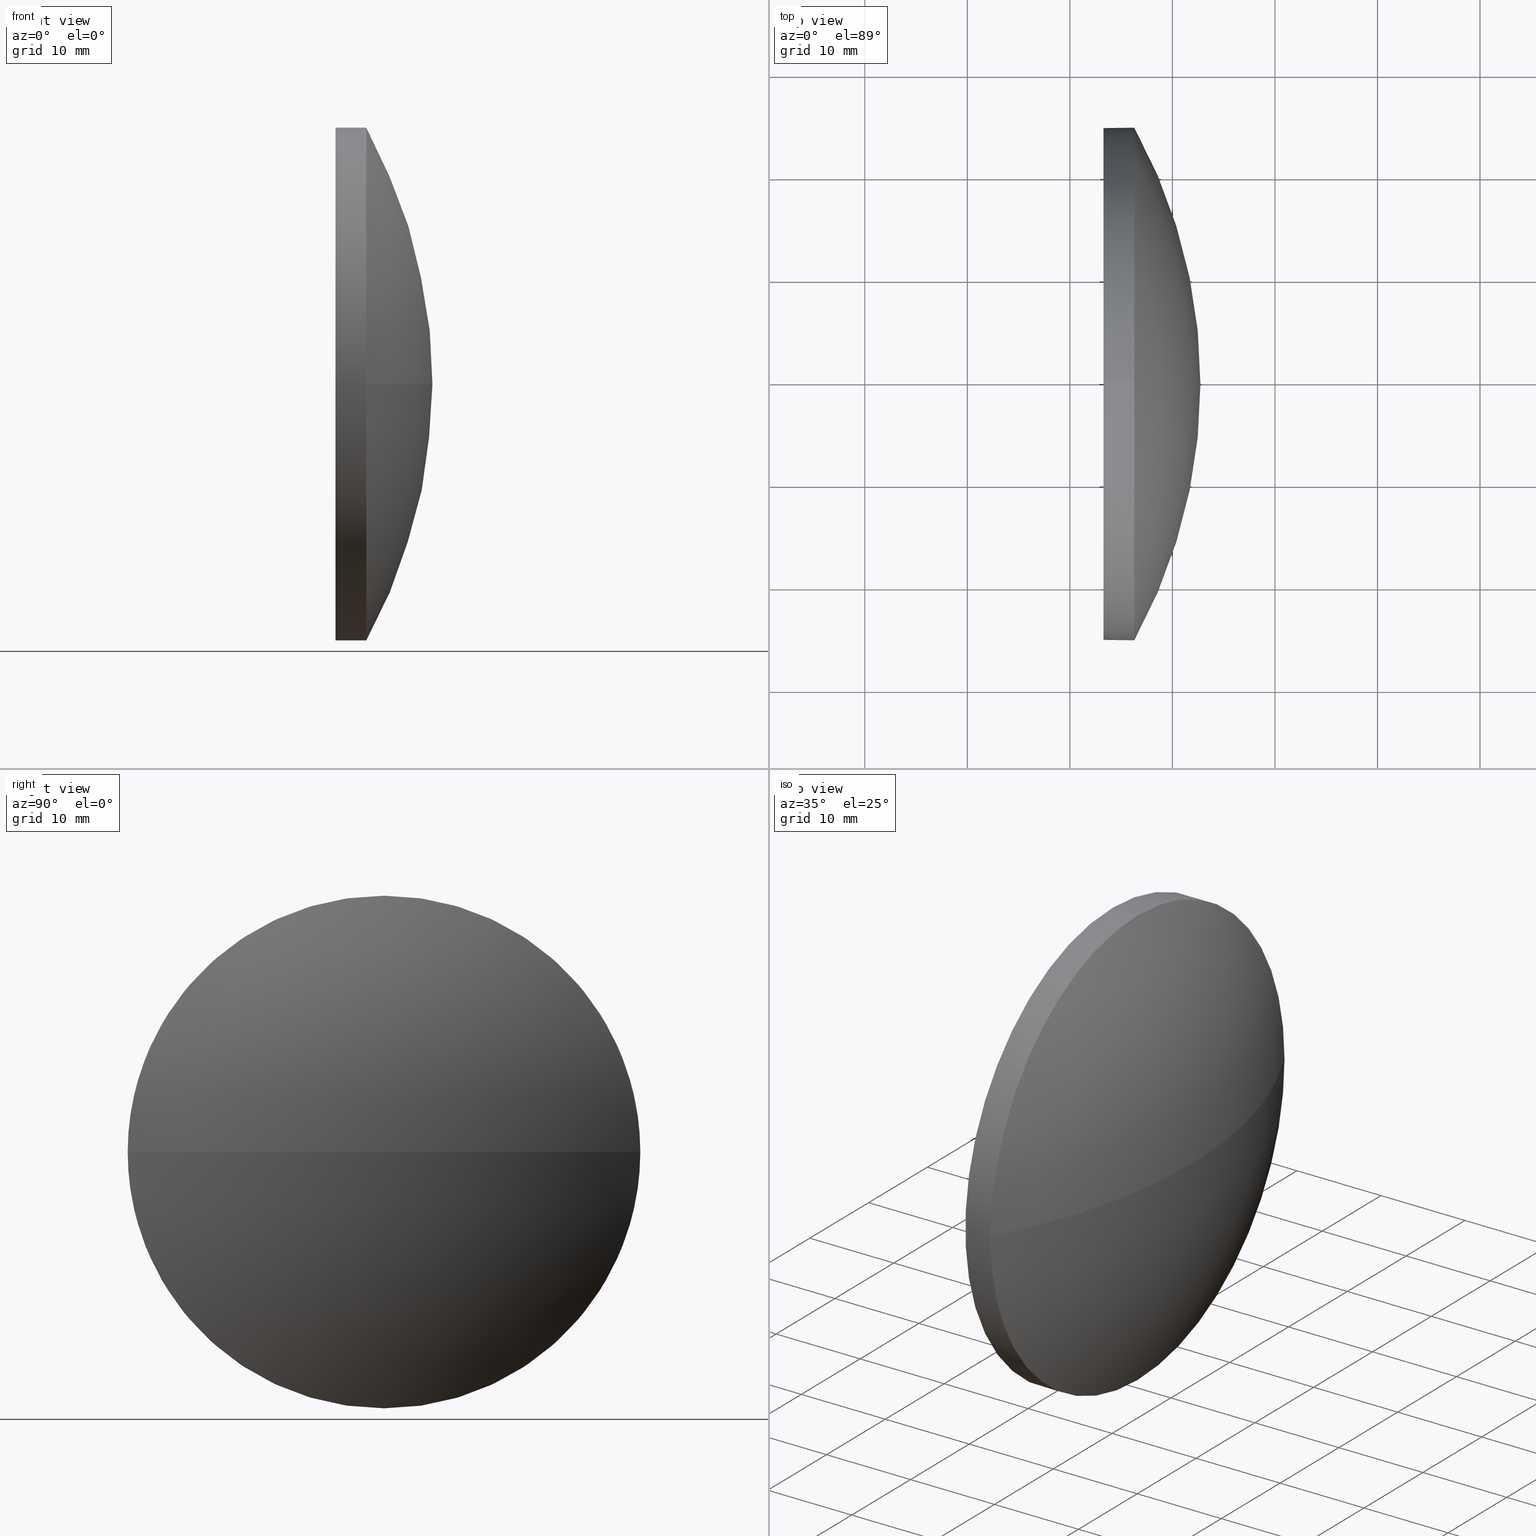
[diagram: canonical four-view strip — front | top / right | iso, engineering-drawing reading convention]
A machine part, canonical four-view strip (front | top / right | iso — engineering-drawing reading convention). The complete STEP part file that produces these views, byte-faithful:
ISO-10303-21;
HEADER;
FILE_DESCRIPTION (( 'STEP AP214' ),
    '1' );
FILE_NAME ('100240.STEP',
    '2019-05-28T08:01:42',
    ( '' ),
    ( '' ),
    'SwSTEP 2.0',
    'SolidWorks 2016',
    '' );
FILE_SCHEMA (( 'AUTOMOTIVE_DESIGN' ));
ENDSEC;

DATA;
#1 = ORIENTED_EDGE ( 'NONE', *, *, #71, .T. ) ;
#2 = VERTEX_POINT ( 'NONE', #103 ) ;
#3 = CARTESIAN_POINT ( 'NONE',  ( 339.3126948403255500, 9.632589185674763900, -24.99999999999999600 ) ) ;
#4 = DIRECTION ( 'NONE',  ( 1.000000000000000000, 0.0000000000000000000, 0.0000000000000000000 ) ) ;
#5 = CARTESIAN_POINT ( 'NONE',  ( 339.3126948403255500, 9.632589185674760300, 0.0000000000000000000 ) ) ;
#6 = DIRECTION ( 'NONE',  ( -1.000000000000000000, -0.0000000000000000000, -0.0000000000000000000 ) ) ;
#7 = CARTESIAN_POINT ( 'NONE',  ( 301.0598577263408500, 9.632589185674756700, 0.0000000000000000000 ) ) ;
#8 = CARTESIAN_POINT ( 'NONE',  ( 346.2844701294416200, -15.36741081432525000, -3.061616997868383800E-015 ) ) ;
#9 = DIRECTION ( 'NONE',  ( -0.0000000000000000000, 0.0000000000000000000, 1.000000000000000000 ) ) ;
#10 = CARTESIAN_POINT ( 'NONE',  ( 346.2844701294416200, 9.632589185674760300, 0.0000000000000000000 ) ) ;
#11 = CIRCLE ( 'NONE', #175, 24.99999999999999600 ) ;
#12 = EDGE_CURVE ( 'NONE', #139, #2, #169, .T. ) ;
#13 = ORIENTED_EDGE ( 'NONE', *, *, #173, .F. ) ;
#14 = EDGE_CURVE ( 'NONE', #133, #69, #11, .T. ) ;
#15 = CIRCLE ( 'NONE', #74, 24.99999999999999600 ) ;
#16 = STYLED_ITEM ( 'NONE', ( #46 ), #72 ) ;
#17 = DIRECTION ( 'NONE',  ( 0.0000000000000000000, 0.0000000000000000000, 1.000000000000000000 ) ) ;
#18 = EDGE_CURVE ( 'NONE', #70, #2, #54, .T. ) ;
#19 = ORIENTED_EDGE ( 'NONE', *, *, #71, .F. ) ;
#20 = FILL_AREA_STYLE ('',( #150 ) ) ;
#21 = AXIS2_PLACEMENT_3D ( 'NONE', #10, #79, #155 ) ;
#22 = CYLINDRICAL_SURFACE ( 'NONE', #121, 24.99999999999999600 ) ;
#23 = FACE_OUTER_BOUND ( 'NONE', #137, .T. ) ;
#24 = SURFACE_SIDE_STYLE ('',( #171 ) ) ;
#25 = AXIS2_PLACEMENT_3D ( 'NONE', #7, #80, #92 ) ;
#26 = DIRECTION ( 'NONE',  ( -1.000000000000000000, -0.0000000000000000000, -0.0000000000000000000 ) ) ;
#27 = MECHANICAL_DESIGN_GEOMETRIC_PRESENTATION_REPRESENTATION (  '', ( #87 ), #100 ) ;
#28 = DIRECTION ( 'NONE',  ( 0.0000000000000000000, 0.0000000000000000000, 1.000000000000000000 ) ) ;
#29 = DIRECTION ( 'NONE',  ( 0.0000000000000000000, 0.0000000000000000000, 1.000000000000000000 ) ) ;
#30 = CARTESIAN_POINT ( 'NONE',  ( 301.0598577263408500, 9.632589185674756700, 0.0000000000000000000 ) ) ;
#31 = CARTESIAN_POINT ( 'NONE',  ( 0.0000000000000000000, 0.0000000000000000000, 0.0000000000000000000 ) ) ;
#32 = EDGE_CURVE ( 'NONE', #159, #133, #89, .T. ) ;
#33 =( LENGTH_UNIT ( ) NAMED_UNIT ( * ) SI_UNIT ( .MILLI., .METRE. ) );
#34 = VECTOR ( 'NONE', #6, 1000.000000000000000 ) ;
#35 = ADVANCED_FACE ( 'NONE', ( #110 ), #57, .F. ) ;
#36 = PRESENTATION_LAYER_ASSIGNMENT (  '', '', ( #16 ) ) ;
#37 = ADVANCED_FACE ( 'NONE', ( #86 ), #67, .T. ) ;
#38 = UNCERTAINTY_MEASURE_WITH_UNIT (LENGTH_MEASURE( 1.000000000000000100E-005 ), #33, 'distance_accuracy_value', 'NONE');
#39 = ORIENTED_EDGE ( 'NONE', *, *, #18, .T. ) ;
#40 = CIRCLE ( 'NONE', #55, 51.67461240310078100 ) ;
#41 = AXIS2_PLACEMENT_3D ( 'NONE', #124, #152, #142 ) ;
#42 = VECTOR ( 'NONE', #26, 1000.000000000000000 ) ;
#43 = CARTESIAN_POINT ( 'NONE',  ( 343.2844701294416200, 9.632589185674760300, 24.99999999999999600 ) ) ;
#44 =( LENGTH_UNIT ( ) NAMED_UNIT ( * ) SI_UNIT ( .MILLI., .METRE. ) );
#45 = CARTESIAN_POINT ( 'NONE',  ( 346.2844701294416200, 9.632589185674763900, -24.99999999999999600 ) ) ;
#46 = PRESENTATION_STYLE_ASSIGNMENT (( #97 ) ) ;
#47 = CARTESIAN_POINT ( 'NONE',  ( 339.3126948403255500, 9.632589185674760300, 0.0000000000000000000 ) ) ;
#48 = DIRECTION ( 'NONE',  ( 1.000000000000000000, 0.0000000000000000000, 0.0000000000000000000 ) ) ;
#49 = ORIENTED_EDGE ( 'NONE', *, *, #14, .F. ) ;
#50 = AXIS2_PLACEMENT_3D ( 'NONE', #30, #93, #180 ) ;
#51 = ORIENTED_EDGE ( 'NONE', *, *, #182, .T. ) ;
#52 = PRODUCT ( '100240', '100240', '', ( #146 ) ) ;
#53 = ORIENTED_EDGE ( 'NONE', *, *, #167, .F. ) ;
#54 = LINE ( 'NONE', #3, #42 ) ;
#55 = AXIS2_PLACEMENT_3D ( 'NONE', #181, #9, #48 ) ;
#56 = CARTESIAN_POINT ( 'NONE',  ( 352.7344701294416600, 9.632589185674760300, 0.0000000000000000000 ) ) ;
#57 = PLANE ( 'NONE',  #65 ) ;
#58 =( NAMED_UNIT ( * ) SI_UNIT ( $, .STERADIAN. ) SOLID_ANGLE_UNIT ( ) );
#59 = VERTEX_POINT ( 'NONE', #56 ) ;
#60 = CARTESIAN_POINT ( 'NONE',  ( 346.2844701294416200, 9.632589185674760300, 0.0000000000000000000 ) ) ;
#61 = DIRECTION ( 'NONE',  ( -1.000000000000000000, -0.0000000000000000000, -0.0000000000000000000 ) ) ;
#62 =( GEOMETRIC_REPRESENTATION_CONTEXT ( 3 ) GLOBAL_UNCERTAINTY_ASSIGNED_CONTEXT ( ( #38 ) ) GLOBAL_UNIT_ASSIGNED_CONTEXT ( ( #33, #114, #131 ) ) REPRESENTATION_CONTEXT ( 'NONE', 'WORKASPACE' ) );
#63 = FILL_AREA_STYLE_COLOUR ( '', #177 ) ;
#64 = CIRCLE ( 'NONE', #21, 24.99999999999999600 ) ;
#65 = AXIS2_PLACEMENT_3D ( 'NONE', #76, #4, #164 ) ;
#66 = APPLICATION_CONTEXT ( 'automotive_design' ) ;
#67 = CYLINDRICAL_SURFACE ( 'NONE', #170, 24.99999999999999600 ) ;
#68 = UNCERTAINTY_MEASURE_WITH_UNIT (LENGTH_MEASURE( 1.000000000000000100E-005 ), #44, 'distance_accuracy_value', 'NONE');
#69 = VERTEX_POINT ( 'NONE', #126 ) ;
#70 = VERTEX_POINT ( 'NONE', #45 ) ;
#71 = EDGE_CURVE ( 'NONE', #70, #159, #15, .T. ) ;
#72 = ADVANCED_BREP_SHAPE_REPRESENTATION ( '100240', ( #149, #140 ), #135 ) ;
#73 = AXIS2_PLACEMENT_3D ( 'NONE', #157, #115, #29 ) ;
#74 = AXIS2_PLACEMENT_3D ( 'NONE', #176, #106, #129 ) ;
#75 = EDGE_CURVE ( 'NONE', #59, #159, #148, .T. ) ;
#76 = CARTESIAN_POINT ( 'NONE',  ( 343.2844701294416200, 9.632589185674760300, 0.0000000000000000000 ) ) ;
#77 = SPHERICAL_SURFACE ( 'NONE', #50, 51.67461240310078100 ) ;
#78 = DIRECTION ( 'NONE',  ( -1.000000000000000000, -0.0000000000000000000, -0.0000000000000000000 ) ) ;
#79 = DIRECTION ( 'NONE',  ( -1.000000000000000000, -0.0000000000000000000, -0.0000000000000000000 ) ) ;
#80 = DIRECTION ( 'NONE',  ( 0.0000000000000000000, 1.224646799147353200E-016, -1.000000000000000000 ) ) ;
#81 = DIRECTION ( 'NONE',  ( 1.000000000000000000, 0.0000000000000000000, 0.0000000000000000000 ) ) ;
#82 = UNCERTAINTY_MEASURE_WITH_UNIT (LENGTH_MEASURE( 1.000000000000000100E-005 ), #144, 'distance_accuracy_value', 'NONE');
#83 = CARTESIAN_POINT ( 'NONE',  ( 339.3126948403255500, 9.632589185674760300, 24.99999999999999600 ) ) ;
#84 = EDGE_LOOP ( 'NONE', ( #104, #118, #49, #162 ) ) ;
#85 = PRODUCT_DEFINITION ( 'δ֪', '', #154, #185 ) ;
#86 = FACE_OUTER_BOUND ( 'NONE', #172, .T. ) ;
#87 = STYLED_ITEM ( 'NONE', ( #138 ), #149 ) ;
#88 = LINE ( 'NONE', #83, #34 ) ;
#89 = CIRCLE ( 'NONE', #112, 24.99999999999999600 ) ;
#90 = PRODUCT_RELATED_PRODUCT_CATEGORY ( 'part', '', ( #52 ) ) ;
#91 = CARTESIAN_POINT ( 'NONE',  ( 346.2844701294416200, 9.632589185674760300, 0.0000000000000000000 ) ) ;
#92 = DIRECTION ( 'NONE',  ( 0.0000000000000000000, 1.000000000000000000, 1.224646799147353200E-016 ) ) ;
#93 = DIRECTION ( 'NONE',  ( -0.0000000000000000000, 0.0000000000000000000, -1.000000000000000000 ) ) ;
#94 =( NAMED_UNIT ( * ) SI_UNIT ( $, .STERADIAN. ) SOLID_ANGLE_UNIT ( ) );
#95 = AXIS2_PLACEMENT_3D ( 'NONE', #168, #179, #105 ) ;
#96 = ORIENTED_EDGE ( 'NONE', *, *, #182, .F. ) ;
#97 = SURFACE_STYLE_USAGE ( .BOTH. , #183 ) ;
#98 = ADVANCED_FACE ( 'NONE', ( #125 ), #184, .T. ) ;
#99 = CLOSED_SHELL ( 'NONE', ( #119, #132, #98, #37, #35 ) ) ;
#100 =( GEOMETRIC_REPRESENTATION_CONTEXT ( 3 ) GLOBAL_UNCERTAINTY_ASSIGNED_CONTEXT ( ( #68 ) ) GLOBAL_UNIT_ASSIGNED_CONTEXT ( ( #44, #141, #58 ) ) REPRESENTATION_CONTEXT ( 'NONE', 'WORKASPACE' ) );
#101 = ORIENTED_EDGE ( 'NONE', *, *, #18, .F. ) ;
#102 = SHAPE_DEFINITION_REPRESENTATION ( #123, #72 ) ;
#103 = CARTESIAN_POINT ( 'NONE',  ( 343.2844701294416200, 9.632589185674763900, -24.99999999999999600 ) ) ;
#104 = ORIENTED_EDGE ( 'NONE', *, *, #75, .F. ) ;
#105 = DIRECTION ( 'NONE',  ( 0.0000000000000000000, 1.000000000000000000, 0.0000000000000000000 ) ) ;
#106 = DIRECTION ( 'NONE',  ( -1.000000000000000000, -0.0000000000000000000, -0.0000000000000000000 ) ) ;
#107 = APPLICATION_PROTOCOL_DEFINITION ( 'draft international standard', 'automotive_design', 1998, #66 ) ;
#108 = ORIENTED_EDGE ( 'NONE', *, *, #32, .T. ) ;
#109 = CIRCLE ( 'NONE', #73, 24.99999999999999600 ) ;
#110 = FACE_OUTER_BOUND ( 'NONE', #186, .T. ) ;
#111 = DIRECTION ( 'NONE',  ( 0.0000000000000000000, 0.0000000000000000000, 1.000000000000000000 ) ) ;
#112 = AXIS2_PLACEMENT_3D ( 'NONE', #60, #78, #111 ) ;
#113 = DIRECTION ( 'NONE',  ( 0.0000000000000000000, 0.0000000000000000000, 1.000000000000000000 ) ) ;
#114 =( NAMED_UNIT ( * ) PLANE_ANGLE_UNIT ( ) SI_UNIT ( $, .RADIAN. ) );
#115 = DIRECTION ( 'NONE',  ( -1.000000000000000000, -0.0000000000000000000, -0.0000000000000000000 ) ) ;
#116 = APPLICATION_PROTOCOL_DEFINITION ( 'draft international standard', 'automotive_design', 1998, #158 ) ;
#117 = DIRECTION ( 'NONE',  ( 0.0000000000000000000, 0.0000000000000000000, 1.000000000000000000 ) ) ;
#118 = ORIENTED_EDGE ( 'NONE', *, *, #167, .T. ) ;
#119 = ADVANCED_FACE ( 'NONE', ( #23 ), #22, .T. ) ;
#120 = ORIENTED_EDGE ( 'NONE', *, *, #12, .T. ) ;
#121 = AXIS2_PLACEMENT_3D ( 'NONE', #47, #143, #28 ) ;
#122 = ORIENTED_EDGE ( 'NONE', *, *, #12, .F. ) ;
#123 = PRODUCT_DEFINITION_SHAPE ( 'NONE', 'NONE',  #85 ) ;
#124 = CARTESIAN_POINT ( 'NONE',  ( 343.2844701294416200, 9.632589185674760300, 0.0000000000000000000 ) ) ;
#125 = FACE_OUTER_BOUND ( 'NONE', #84, .T. ) ;
#126 = CARTESIAN_POINT ( 'NONE',  ( 346.2844701294416200, 34.63258918567477500, 0.0000000000000000000 ) ) ;
#127 =( NAMED_UNIT ( * ) PLANE_ANGLE_UNIT ( ) SI_UNIT ( $, .RADIAN. ) );
#128 = CARTESIAN_POINT ( 'NONE',  ( 346.2844701294416200, 9.632589185674760300, 24.99999999999999600 ) ) ;
#129 = DIRECTION ( 'NONE',  ( 0.0000000000000000000, 0.0000000000000000000, 1.000000000000000000 ) ) ;
#130 = FACE_OUTER_BOUND ( 'NONE', #163, .T. ) ;
#131 =( NAMED_UNIT ( * ) SI_UNIT ( $, .STERADIAN. ) SOLID_ANGLE_UNIT ( ) );
#132 = ADVANCED_FACE ( 'NONE', ( #130 ), #77, .T. ) ;
#133 = VERTEX_POINT ( 'NONE', #128 ) ;
#134 = PRESENTATION_LAYER_ASSIGNMENT (  '', '', ( #87 ) ) ;
#135 =( GEOMETRIC_REPRESENTATION_CONTEXT ( 3 ) GLOBAL_UNCERTAINTY_ASSIGNED_CONTEXT ( ( #82 ) ) GLOBAL_UNIT_ASSIGNED_CONTEXT ( ( #144, #127, #94 ) ) REPRESENTATION_CONTEXT ( 'NONE', 'WORKASPACE' ) );
#136 = ORIENTED_EDGE ( 'NONE', *, *, #75, .T. ) ;
#137 = EDGE_LOOP ( 'NONE', ( #166, #39, #122, #13, #151 ) ) ;
#138 = PRESENTATION_STYLE_ASSIGNMENT (( #165 ) ) ;
#139 = VERTEX_POINT ( 'NONE', #43 ) ;
#140 = AXIS2_PLACEMENT_3D ( 'NONE', #31, #117, #81 ) ;
#141 =( NAMED_UNIT ( * ) PLANE_ANGLE_UNIT ( ) SI_UNIT ( $, .RADIAN. ) );
#142 = DIRECTION ( 'NONE',  ( 0.0000000000000000000, 0.0000000000000000000, 1.000000000000000000 ) ) ;
#143 = DIRECTION ( 'NONE',  ( -1.000000000000000000, -0.0000000000000000000, -0.0000000000000000000 ) ) ;
#144 =( LENGTH_UNIT ( ) NAMED_UNIT ( * ) SI_UNIT ( .MILLI., .METRE. ) );
#145 = MECHANICAL_DESIGN_GEOMETRIC_PRESENTATION_REPRESENTATION (  '', ( #16 ), #62 ) ;
#146 = PRODUCT_CONTEXT ( 'NONE', #158, 'mechanical' ) ;
#147 = SURFACE_STYLE_FILL_AREA ( #156 ) ;
#148 = CIRCLE ( 'NONE', #25, 51.67461240310078100 ) ;
#149 = MANIFOLD_SOLID_BREP ( '��ת1', #99 ) ;
#150 = FILL_AREA_STYLE_COLOUR ( '', #174 ) ;
#151 = ORIENTED_EDGE ( 'NONE', *, *, #14, .T. ) ;
#152 = DIRECTION ( 'NONE',  ( -1.000000000000000000, -0.0000000000000000000, -0.0000000000000000000 ) ) ;
#153 = DIRECTION ( 'NONE',  ( -1.000000000000000000, -0.0000000000000000000, -0.0000000000000000000 ) ) ;
#154 = PRODUCT_DEFINITION_FORMATION_WITH_SPECIFIED_SOURCE ( '�κ�', '', #52, .NOT_KNOWN. ) ;
#155 = DIRECTION ( 'NONE',  ( 0.0000000000000000000, 0.0000000000000000000, 1.000000000000000000 ) ) ;
#156 = FILL_AREA_STYLE ('',( #63 ) ) ;
#157 = CARTESIAN_POINT ( 'NONE',  ( 343.2844701294416200, 9.632589185674760300, 0.0000000000000000000 ) ) ;
#158 = APPLICATION_CONTEXT ( 'automotive_design' ) ;
#159 = VERTEX_POINT ( 'NONE', #8 ) ;
#160 = ORIENTED_EDGE ( 'NONE', *, *, #161, .F. ) ;
#161 = EDGE_CURVE ( 'NONE', #69, #70, #64, .T. ) ;
#162 = ORIENTED_EDGE ( 'NONE', *, *, #32, .F. ) ;
#163 = EDGE_LOOP ( 'NONE', ( #53, #136, #19, #160 ) ) ;
#164 = DIRECTION ( 'NONE',  ( 0.0000000000000000000, 0.0000000000000000000, -1.000000000000000000 ) ) ;
#165 = SURFACE_STYLE_USAGE ( .BOTH. , #24 ) ;
#166 = ORIENTED_EDGE ( 'NONE', *, *, #161, .T. ) ;
#167 = EDGE_CURVE ( 'NONE', #59, #69, #40, .T. ) ;
#168 = CARTESIAN_POINT ( 'NONE',  ( 301.0598577263408500, 9.632589185674756700, 0.0000000000000000000 ) ) ;
#169 = CIRCLE ( 'NONE', #41, 24.99999999999999600 ) ;
#170 = AXIS2_PLACEMENT_3D ( 'NONE', #5, #153, #113 ) ;
#171 = SURFACE_STYLE_FILL_AREA ( #20 ) ;
#172 = EDGE_LOOP ( 'NONE', ( #101, #1, #108, #178, #96 ) ) ;
#173 = EDGE_CURVE ( 'NONE', #133, #139, #88, .T. ) ;
#174 = COLOUR_RGB ( '',1.000000000000000000, 1.000000000000000000, 1.000000000000000000 ) ;
#175 = AXIS2_PLACEMENT_3D ( 'NONE', #91, #61, #17 ) ;
#176 = CARTESIAN_POINT ( 'NONE',  ( 346.2844701294416200, 9.632589185674760300, 0.0000000000000000000 ) ) ;
#177 = COLOUR_RGB ( '',1.000000000000000000, 1.000000000000000000, 1.000000000000000000 ) ;
#178 = ORIENTED_EDGE ( 'NONE', *, *, #173, .T. ) ;
#179 = DIRECTION ( 'NONE',  ( -0.0000000000000000000, 0.0000000000000000000, -1.000000000000000000 ) ) ;
#180 = DIRECTION ( 'NONE',  ( 0.0000000000000000000, 1.000000000000000000, 0.0000000000000000000 ) ) ;
#181 = CARTESIAN_POINT ( 'NONE',  ( 301.0598577263408500, 9.632589185674756700, 0.0000000000000000000 ) ) ;
#182 = EDGE_CURVE ( 'NONE', #2, #139, #109, .T. ) ;
#183 = SURFACE_SIDE_STYLE ('',( #147 ) ) ;
#184 = SPHERICAL_SURFACE ( 'NONE', #95, 51.67461240310078100 ) ;
#185 = PRODUCT_DEFINITION_CONTEXT ( 'detailed design', #66, 'design' ) ;
#186 = EDGE_LOOP ( 'NONE', ( #120, #51 ) ) ;
ENDSEC;
END-ISO-10303-21;
